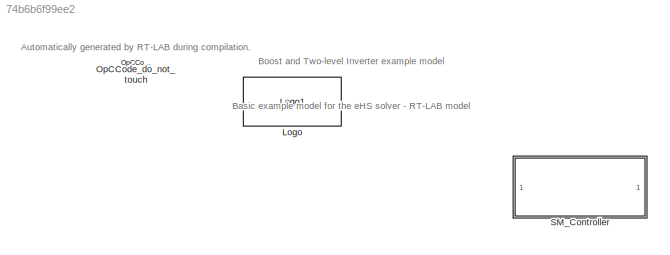
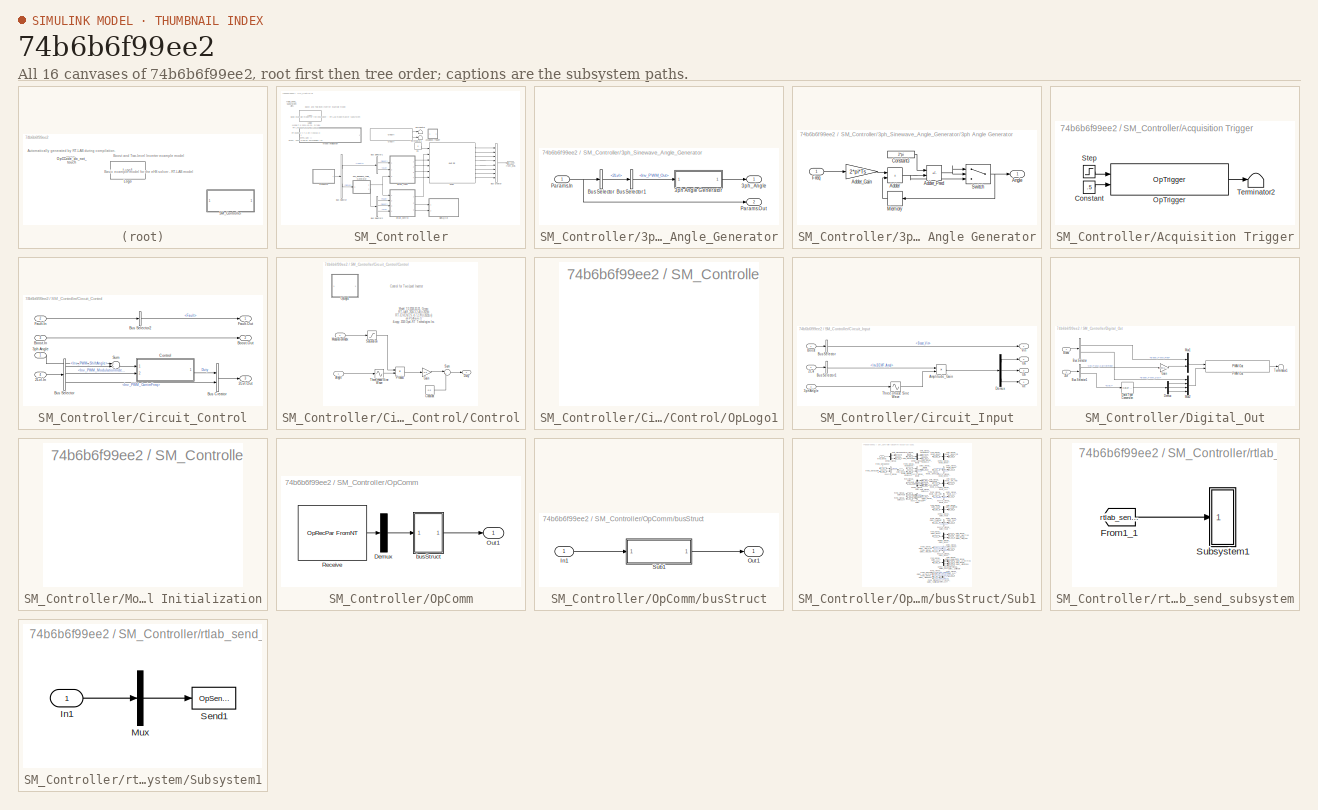
[diagram: thumbnail index - all 16 canvases of the model, root first then tree order]
MODEL slx_74b6b6f99ee2
KIND model
CONFIG AbsTol = auto
CONFIG EnableMultiTasking = off
CONFIG FixedStep = 2e-05
CONFIG InitFcn = Boost_and_Two_Level_Inverter_param;
CONFIG MaxStep = auto
CONFIG MinStep = auto
CONFIG PostLoadFcn = Boost_and_Two_Level_Inverter_param;
CONFIG RelTol = 1e-3
CONFIG SampleTimeConstraint = Unconstrained
CONFIG SolverName = ode3
CONFIG StartTime = 0.0
CONFIG StopTime = inf
BLOCK [Reference] Logo  REF=opal_lib/Logo1
  Ports = []
  SourceBlock = opal_lib/Logo1
  SourceType = Opal-RT logo
BLOCK [Reference] OpCCode_do_not_touch  REF=opal_lib/Communication/OpCCode
  Ports = []
  SourceBlock = opal_lib/Communication/OpCCode
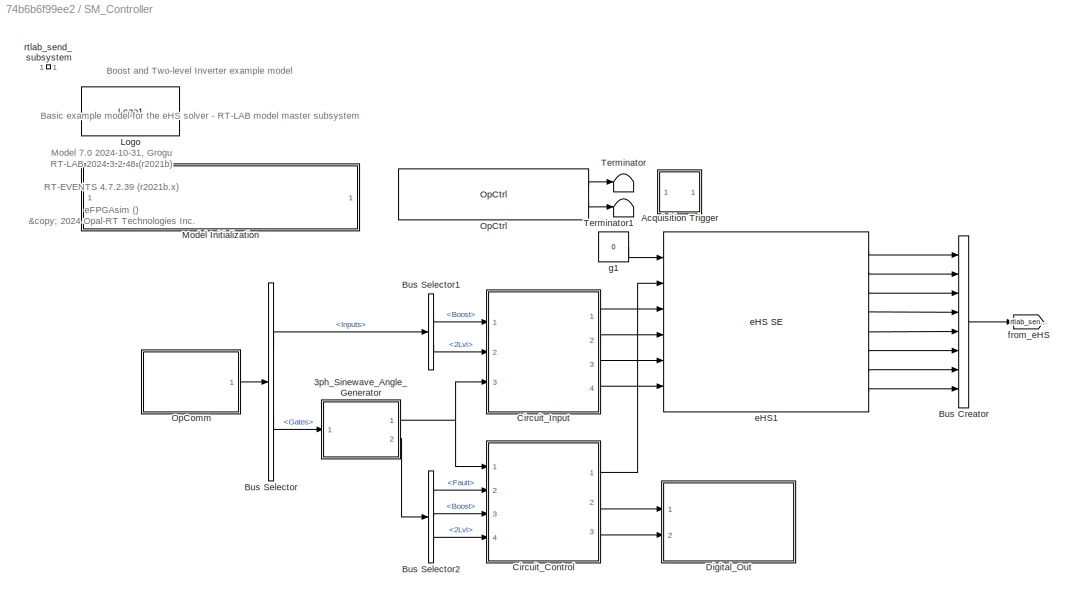
BLOCK [SubSystem] SM_Controller
  Ports = []
  RequestExecContextInheritance = off
BLOCK [SubSystem] SM_Controller/3ph_Sinewave_Angle_Generator
  NameLocation = top
  Ports = [1, 2]
  RequestExecContextInheritance = off
BLOCK [SubSystem] SM_Controller/3ph_Sinewave_Angle_Generator/3ph Angle Generator
  Ports = [1, 1]
  RequestExecContextInheritance = off
BLOCK [Sum] SM_Controller/3ph_Sinewave_Angle_Generator/3ph Angle Generator/Adder
  IconShape = rectangular
  Ports = [2, 1]
BLOCK [Gain] SM_Controller/3ph_Sinewave_Angle_Generator/3ph Angle Generator/Adder_Gain
  Gain = 2*pi*Ts
  NameLocation = top
  OutDataTypeStr = double
BLOCK [Sum] SM_Controller/3ph_Sinewave_Angle_Generator/3ph Angle Generator/Adder_Pred
  IconShape = rectangular
  Inputs = -+
  NameLocation = top
  Ports = [2, 1]
BLOCK [Outport] SM_Controller/3ph_Sinewave_Angle_Generator/3ph Angle Generator/Angle
  VectorParamsAs1DForOutWhenUnconnected = off
BLOCK [Constant] SM_Controller/3ph_Sinewave_Angle_Generator/3ph Angle Generator/Constant3
  OutDataTypeStr = double
  Value = 2*pi
BLOCK [Inport] SM_Controller/3ph_Sinewave_Angle_Generator/3ph Angle Generator/Freq
BLOCK [Memory] SM_Controller/3ph_Sinewave_Angle_Generator/3ph Angle Generator/Memory
  InheritSampleTime = on
BLOCK [Switch] SM_Controller/3ph_Sinewave_Angle_Generator/3ph Angle Generator/Switch
  Criteria = u2 > Threshold
  InputSameDT = off
  SaturateOnIntegerOverflow = off
BLOCK [Outport] SM_Controller/3ph_Sinewave_Angle_Generator/3ph_Angle
  VectorParamsAs1DForOutWhenUnconnected = off
BLOCK [BusSelector] SM_Controller/3ph_Sinewave_Angle_Generator/Bus Selector
  OutputSignals = 2Lvl
  Ports = [1, 1]
BLOCK [BusSelector] SM_Controller/3ph_Sinewave_Angle_Generator/Bus Selector1
  OutputSignals = Inv_PWM_Out
  Ports = [1, 1]
BLOCK [Inport] SM_Controller/3ph_Sinewave_Angle_Generator/Params.In
BLOCK [Outport] SM_Controller/3ph_Sinewave_Angle_Generator/Params.Out
  Port = 2
  VectorParamsAs1DForOutWhenUnconnected = off
BLOCK [SubSystem] SM_Controller/Acquisition Trigger
  Ports = []
  RequestExecContextInheritance = off
BLOCK [Constant] SM_Controller/Acquisition Trigger/Constant
  Value = .5
BLOCK [Reference] SM_Controller/Acquisition Trigger/OpTrigger  REF=rtlab/DataLogging/OpTrigger
  Ports = [2, 1]
  SourceBlock = rtlab/DataLogging/OpTrigger
  SourceProductName = RT-LAB
  SourceType = OpTrigger
BLOCK [Step] SM_Controller/Acquisition Trigger/Step
  SampleTime = Ts
  Time = 0.5
BLOCK [Terminator] SM_Controller/Acquisition Trigger/Terminator2
BLOCK [BusCreator] SM_Controller/Bus Creator
  DisplayOption = bar
  InheritFromInputs = on
  Inputs = 8
  Ports = [8, 1]
BLOCK [BusSelector] SM_Controller/Bus Selector
  OutputSignals = Inputs,Gates
  Ports = [1, 2]
BLOCK [BusSelector] SM_Controller/Bus Selector1
  OutputSignals = Boost,2Lvl
  Ports = [1, 2]
BLOCK [BusSelector] SM_Controller/Bus Selector2
  OutputSignals = Fault,Boost,2Lvl
  Ports = [1, 3]
BLOCK [SubSystem] SM_Controller/Circuit_Control
  Ports = [4, 3]
  RequestExecContextInheritance = off
BLOCK [Inport] SM_Controller/Circuit_Control/2Lvl.In
  Port = 4
BLOCK [Outport] SM_Controller/Circuit_Control/2Lvl.Out
  Port = 3
  VectorParamsAs1DForOutWhenUnconnected = off
BLOCK [Inport] SM_Controller/Circuit_Control/3ph Angle
BLOCK [Inport] SM_Controller/Circuit_Control/Boost.In
  Port = 3
BLOCK [Outport] SM_Controller/Circuit_Control/Boost.Out
  Port = 2
  VectorParamsAs1DForOutWhenUnconnected = off
BLOCK [BusCreator] SM_Controller/Circuit_Control/Bus Creator
  DisplayOption = bar
  InheritFromInputs = on
  Inputs = 2
  Ports = [2, 1]
BLOCK [BusSelector] SM_Controller/Circuit_Control/Bus Selector
  OutputSignals = Inv_PWM_ShiftAngle,Inv_PWM_ModulationIndex,Inv_PWM_CarrierFreq
  Ports = [1, 3]
BLOCK [BusSelector] SM_Controller/Circuit_Control/Bus Selector2
  OutputSignals = Fault
  Ports = [1, 1]
BLOCK [SubSystem] SM_Controller/Circuit_Control/Control
  NameLocation = top
  Ports = [2, 1]
  RequestExecContextInheritance = off
BLOCK [Inport] SM_Controller/Circuit_Control/Control/Angle
BLOCK [Constant] SM_Controller/Circuit_Control/Control/Constant
  Value = 0.5
BLOCK [Outport] SM_Controller/Circuit_Control/Control/Duty
  VectorParamsAs1DForOutWhenUnconnected = off
BLOCK [Gain] SM_Controller/Circuit_Control/Control/Gain
  Gain = 0.5
BLOCK [Inport] SM_Controller/Circuit_Control/Control/ModulationIndex
  Port = 2
BLOCK [SubSystem] SM_Controller/Circuit_Control/Control/OpLogo1
  Ports = []
  RequestExecContextInheritance = off
BLOCK [Product] SM_Controller/Circuit_Control/Control/Product
  Ports = [2, 1]
  RndMeth = Zero
BLOCK [Saturate] SM_Controller/Circuit_Control/Control/Saturation
  LowerLimit = 0.05
  OutDataTypeStr = Inherit: Inherit via back propagation
  UpperLimit = 0.95
BLOCK [Sum] SM_Controller/Circuit_Control/Control/Sum
  Inputs = |++
  Ports = [2, 1]
BLOCK [Sin] SM_Controller/Circuit_Control/Control/Three-phase Sine Wave
  NameLocation = top
  Phase = Inv_PWM_Phases
  Ports = [1, 1]
  TimeSource = Use external signal
BLOCK [Inport] SM_Controller/Circuit_Control/Fault.In
  Port = 2
BLOCK [Outport] SM_Controller/Circuit_Control/Fault.Out
  VectorParamsAs1DForOutWhenUnconnected = off
BLOCK [Sum] SM_Controller/Circuit_Control/Sum
  Inputs = ++|
  NameLocation = top
  Ports = [2, 1]
BLOCK [SubSystem] SM_Controller/Circuit_Input
  NameLocation = top
  Ports = [3, 4]
  RequestExecContextInheritance = off
BLOCK [Inport] SM_Controller/Circuit_Input/2Lvl
  Port = 2
BLOCK [Inport] SM_Controller/Circuit_Input/3phAngle
  Port = 3
BLOCK [Product] SM_Controller/Circuit_Input/Amplitude_Gain
  NameLocation = top
  Ports = [2, 1]
  RndMeth = Zero
BLOCK [Inport] SM_Controller/Circuit_Input/Boost
BLOCK [BusSelector] SM_Controller/Circuit_Input/Bus Selector
  OutputSignals = Boost_Vin
  Ports = [1, 1]
BLOCK [BusSelector] SM_Controller/Circuit_Input/Bus Selector1
  OutputSignals = Inv_BEMF_Ampl
  Ports = [1, 1]
BLOCK [Demux] SM_Controller/Circuit_Input/Demux
  Outputs = 3
  Ports = [1, 3]
BLOCK [Sin] SM_Controller/Circuit_Input/Three-phase Sine Wave
  NameLocation = top
  Phase = Inv_PWM_Phases
  Ports = [1, 1]
  TimeSource = Use external signal
BLOCK [Outport] SM_Controller/Circuit_Input/Ua
  Port = 2
  VectorParamsAs1DForOutWhenUnconnected = off
BLOCK [Outport] SM_Controller/Circuit_Input/Ub
  Port = 3
  VectorParamsAs1DForOutWhenUnconnected = off
BLOCK [Outport] SM_Controller/Circuit_Input/Uc
  Port = 4
  VectorParamsAs1DForOutWhenUnconnected = off
BLOCK [Outport] SM_Controller/Circuit_Input/Vin
  VectorParamsAs1DForOutWhenUnconnected = off
BLOCK [SubSystem] SM_Controller/Digital_Out
  Ports = [2]
  RequestExecContextInheritance = off
BLOCK [Inport] SM_Controller/Digital_Out/2Lvl
  Port = 2
BLOCK [Inport] SM_Controller/Digital_Out/Boost
BLOCK [BusSelector] SM_Controller/Digital_Out/Bus Selector
  OutputSignals = Boost_PWM_Freq,Boost_PWM_Duty
  Ports = [1, 2]
BLOCK [BusSelector] SM_Controller/Digital_Out/Bus Selector1
  OutputSignals = Inv_PWM_CarrierFreq,Duty
  Ports = [1, 2]
BLOCK [DataTypeConversion] SM_Controller/Digital_Out/Data Type Conversion
  OutDataTypeStr = double
  RndMeth = Floor
  SaturateOnIntegerOverflow = off
BLOCK [Demux] SM_Controller/Digital_Out/Demux
  Outputs = 3
  Ports = [1, 3]
BLOCK [Gain] SM_Controller/Digital_Out/Gain
  Gain = ones(1,3)
BLOCK [Mux] SM_Controller/Digital_Out/Mux1
  DisplayOption = bar
  Inputs = 2
  Ports = [2, 1]
BLOCK [Mux] SM_Controller/Digital_Out/Mux2
  DisplayOption = bar
  Ports = [4, 1]
BLOCK [Reference] SM_Controller/Digital_Out/PWM Out  REF=rtio_opalrt_common/PWM Out
  AttributesFormatString = %<CtrlName>
  Ports = [2, 1]
  SourceBlock = rtio_opalrt_common/PWM Out
  SourceProductName = RT-LAB I/O
  SourceType = OpFcnCommonPWMOut
BLOCK [Terminator] SM_Controller/Digital_Out/Terminator1
BLOCK [Reference] SM_Controller/Logo  REF=opal_lib/Logo1
  Ports = []
  SourceBlock = opal_lib/Logo1
  SourceType = Opal-RT logo
BLOCK [SubSystem] SM_Controller/Model Initialization
  CopyFcn = set_param(gcb,'LinkStatus','none')
  Ports = []
  RequestExecContextInheritance = off
BLOCK [SubSystem] SM_Controller/OpComm
  Ports = [0, 1]
  RequestExecContextInheritance = off
BLOCK [Demux] SM_Controller/OpComm/Demux
  Outputs = [9]
  Ports = [1, 1]
BLOCK [Outport] SM_Controller/OpComm/Out1
BLOCK [Reference] SM_Controller/OpComm/Receive  REF=opal_lib/Communication/OpRecPar
FromNT
  Ports = [0, 1]
  SourceBlock = opal_lib/Communication/OpRecPar\nFromNT
  SourceType = OPAL Receive Icon
BLOCK [SubSystem] SM_Controller/OpComm/busStruct
  Ports = [1, 1]
  RequestExecContextInheritance = off
BLOCK [Inport] SM_Controller/OpComm/busStruct/In1
BLOCK [Outport] SM_Controller/OpComm/busStruct/Out1
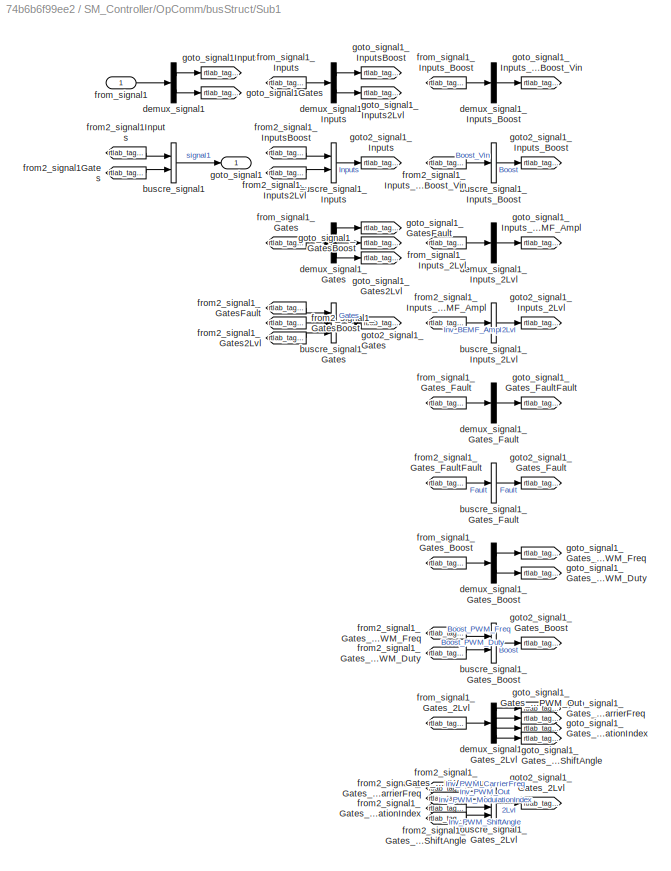
BLOCK [SubSystem] SM_Controller/OpComm/busStruct/Sub1
  Ports = [1, 1]
  RequestExecContextInheritance = off
BLOCK [BusCreator] SM_Controller/OpComm/busStruct/Sub1/buscre_signal1
  InheritFromInputs = on
  Inputs = 2
  Ports = [2, 1]
BLOCK [BusCreator] SM_Controller/OpComm/busStruct/Sub1/buscre_signal1_Gates
  InheritFromInputs = on
  Inputs = 3
  Ports = [3, 1]
BLOCK [BusCreator] SM_Controller/OpComm/busStruct/Sub1/buscre_signal1_Gates_2Lvl
  InheritFromInputs = on
  Inputs = 4
  Ports = [4, 1]
BLOCK [BusCreator] SM_Controller/OpComm/busStruct/Sub1/buscre_signal1_Gates_Boost
  InheritFromInputs = on
  Inputs = 2
  Ports = [2, 1]
BLOCK [BusCreator] SM_Controller/OpComm/busStruct/Sub1/buscre_signal1_Gates_Fault
  InheritFromInputs = on
  Inputs = 1
  Ports = [1, 1]
BLOCK [BusCreator] SM_Controller/OpComm/busStruct/Sub1/buscre_signal1_Inputs
  InheritFromInputs = on
  Inputs = 2
  Ports = [2, 1]
BLOCK [BusCreator] SM_Controller/OpComm/busStruct/Sub1/buscre_signal1_Inputs_2Lvl
  InheritFromInputs = on
  Inputs = 1
  Ports = [1, 1]
BLOCK [BusCreator] SM_Controller/OpComm/busStruct/Sub1/buscre_signal1_Inputs_Boost
  InheritFromInputs = on
  Inputs = 1
  Ports = [1, 1]
BLOCK [Demux] SM_Controller/OpComm/busStruct/Sub1/demux_signal1
  Outputs = [2  7]
  Ports = [1, 2]
BLOCK [Demux] SM_Controller/OpComm/busStruct/Sub1/demux_signal1_Gates
  Outputs = [1  2  4]
  Ports = [1, 3]
BLOCK [Demux] SM_Controller/OpComm/busStruct/Sub1/demux_signal1_Gates_2Lvl
  Outputs = [1  1  1  1]
  Ports = [1, 4]
BLOCK [Demux] SM_Controller/OpComm/busStruct/Sub1/demux_signal1_Gates_Boost
  Outputs = [1  1]
  Ports = [1, 2]
BLOCK [Demux] SM_Controller/OpComm/busStruct/Sub1/demux_signal1_Gates_Fault
  Outputs = [1]
  Ports = [1, 1]
BLOCK [Demux] SM_Controller/OpComm/busStruct/Sub1/demux_signal1_Inputs
  Outputs = [1  1]
  Ports = [1, 2]
BLOCK [Demux] SM_Controller/OpComm/busStruct/Sub1/demux_signal1_Inputs_2Lvl
  Outputs = [1]
  Ports = [1, 1]
BLOCK [Demux] SM_Controller/OpComm/busStruct/Sub1/demux_signal1_Inputs_Boost
  Outputs = [1]
  Ports = [1, 1]
BLOCK [From] SM_Controller/OpComm/busStruct/Sub1/from2_signal1Gates
  GotoTag = rtlab_tag_4
BLOCK [From] SM_Controller/OpComm/busStruct/Sub1/from2_signal1Inputs
  GotoTag = rtlab_tag_3
BLOCK [From] SM_Controller/OpComm/busStruct/Sub1/from2_signal1_Gates2Lvl
  GotoTag = rtlab_tag_16
BLOCK [From] SM_Controller/OpComm/busStruct/Sub1/from2_signal1_GatesBoost
  GotoTag = rtlab_tag_15
BLOCK [From] SM_Controller/OpComm/busStruct/Sub1/from2_signal1_GatesFault
  GotoTag = rtlab_tag_14
BLOCK [From] SM_Controller/OpComm/busStruct/Sub1/from2_signal1_Gates_2LvlInv_PWM_CarrierFreq
  GotoTag = rtlab_tag_20
BLOCK [From] SM_Controller/OpComm/busStruct/Sub1/from2_signal1_Gates_2LvlInv_PWM_ModulationIndex
  GotoTag = rtlab_tag_22
BLOCK [From] SM_Controller/OpComm/busStruct/Sub1/from2_signal1_Gates_2LvlInv_PWM_Out
  GotoTag = rtlab_tag_21
BLOCK [From] SM_Controller/OpComm/busStruct/Sub1/from2_signal1_Gates_2LvlInv_PWM_ShiftAngle
  GotoTag = rtlab_tag_23
BLOCK [From] SM_Controller/OpComm/busStruct/Sub1/from2_signal1_Gates_BoostBoost_PWM_Duty
  GotoTag = rtlab_tag_19
BLOCK [From] SM_Controller/OpComm/busStruct/Sub1/from2_signal1_Gates_BoostBoost_PWM_Freq
  GotoTag = rtlab_tag_18
BLOCK [From] SM_Controller/OpComm/busStruct/Sub1/from2_signal1_Gates_FaultFault
  GotoTag = rtlab_tag_17
BLOCK [From] SM_Controller/OpComm/busStruct/Sub1/from2_signal1_Inputs2Lvl
  GotoTag = rtlab_tag_8
BLOCK [From] SM_Controller/OpComm/busStruct/Sub1/from2_signal1_InputsBoost
  GotoTag = rtlab_tag_7
BLOCK [From] SM_Controller/OpComm/busStruct/Sub1/from2_signal1_Inputs_2LvlInv_BEMF_Ampl
  GotoTag = rtlab_tag_10
BLOCK [From] SM_Controller/OpComm/busStruct/Sub1/from2_signal1_Inputs_BoostBoost_Vin
  GotoTag = rtlab_tag_9
BLOCK [Inport] SM_Controller/OpComm/busStruct/Sub1/from_signal1
BLOCK [From] SM_Controller/OpComm/busStruct/Sub1/from_signal1_Gates
  GotoTag = rtlab_tag_2
BLOCK [From] SM_Controller/OpComm/busStruct/Sub1/from_signal1_Gates_2Lvl
  GotoTag = rtlab_tag_13
BLOCK [From] SM_Controller/OpComm/busStruct/Sub1/from_signal1_Gates_Boost
  GotoTag = rtlab_tag_12
BLOCK [From] SM_Controller/OpComm/busStruct/Sub1/from_signal1_Gates_Fault
  GotoTag = rtlab_tag_11
BLOCK [From] SM_Controller/OpComm/busStruct/Sub1/from_signal1_Inputs
  GotoTag = rtlab_tag_1
BLOCK [From] SM_Controller/OpComm/busStruct/Sub1/from_signal1_Inputs_2Lvl
  GotoTag = rtlab_tag_6
BLOCK [From] SM_Controller/OpComm/busStruct/Sub1/from_signal1_Inputs_Boost
  GotoTag = rtlab_tag_5
BLOCK [Goto] SM_Controller/OpComm/busStruct/Sub1/goto2_signal1_Gates
  GotoTag = rtlab_tag_4
BLOCK [Goto] SM_Controller/OpComm/busStruct/Sub1/goto2_signal1_Gates_2Lvl
  GotoTag = rtlab_tag_16
BLOCK [Goto] SM_Controller/OpComm/busStruct/Sub1/goto2_signal1_Gates_Boost
  GotoTag = rtlab_tag_15
BLOCK [Goto] SM_Controller/OpComm/busStruct/Sub1/goto2_signal1_Gates_Fault
  GotoTag = rtlab_tag_14
BLOCK [Goto] SM_Controller/OpComm/busStruct/Sub1/goto2_signal1_Inputs
  GotoTag = rtlab_tag_3
BLOCK [Goto] SM_Controller/OpComm/busStruct/Sub1/goto2_signal1_Inputs_2Lvl
  GotoTag = rtlab_tag_8
BLOCK [Goto] SM_Controller/OpComm/busStruct/Sub1/goto2_signal1_Inputs_Boost
  GotoTag = rtlab_tag_7
BLOCK [Outport] SM_Controller/OpComm/busStruct/Sub1/goto_signal1
BLOCK [Goto] SM_Controller/OpComm/busStruct/Sub1/goto_signal1Gates
  GotoTag = rtlab_tag_2
BLOCK [Goto] SM_Controller/OpComm/busStruct/Sub1/goto_signal1Inputs
  GotoTag = rtlab_tag_1
BLOCK [Goto] SM_Controller/OpComm/busStruct/Sub1/goto_signal1_Gates2Lvl
  GotoTag = rtlab_tag_13
BLOCK [Goto] SM_Controller/OpComm/busStruct/Sub1/goto_signal1_GatesBoost
  GotoTag = rtlab_tag_12
BLOCK [Goto] SM_Controller/OpComm/busStruct/Sub1/goto_signal1_GatesFault
  GotoTag = rtlab_tag_11
BLOCK [Goto] SM_Controller/OpComm/busStruct/Sub1/goto_signal1_Gates_2LvlInv_PWM_CarrierFreq
  GotoTag = rtlab_tag_20
BLOCK [Goto] SM_Controller/OpComm/busStruct/Sub1/goto_signal1_Gates_2LvlInv_PWM_ModulationIndex
  GotoTag = rtlab_tag_22
BLOCK [Goto] SM_Controller/OpComm/busStruct/Sub1/goto_signal1_Gates_2LvlInv_PWM_Out
  GotoTag = rtlab_tag_21
BLOCK [Goto] SM_Controller/OpComm/busStruct/Sub1/goto_signal1_Gates_2LvlInv_PWM_ShiftAngle
  GotoTag = rtlab_tag_23
BLOCK [Goto] SM_Controller/OpComm/busStruct/Sub1/goto_signal1_Gates_BoostBoost_PWM_Duty
  GotoTag = rtlab_tag_19
BLOCK [Goto] SM_Controller/OpComm/busStruct/Sub1/goto_signal1_Gates_BoostBoost_PWM_Freq
  GotoTag = rtlab_tag_18
BLOCK [Goto] SM_Controller/OpComm/busStruct/Sub1/goto_signal1_Gates_FaultFault
  GotoTag = rtlab_tag_17
BLOCK [Goto] SM_Controller/OpComm/busStruct/Sub1/goto_signal1_Inputs2Lvl
  GotoTag = rtlab_tag_6
BLOCK [Goto] SM_Controller/OpComm/busStruct/Sub1/goto_signal1_InputsBoost
  GotoTag = rtlab_tag_5
BLOCK [Goto] SM_Controller/OpComm/busStruct/Sub1/goto_signal1_Inputs_2LvlInv_BEMF_Ampl
  GotoTag = rtlab_tag_10
BLOCK [Goto] SM_Controller/OpComm/busStruct/Sub1/goto_signal1_Inputs_BoostBoost_Vin
  GotoTag = rtlab_tag_9
BLOCK [Reference] SM_Controller/OpCtrl  REF=rtio_opalrt_common/OpCtrl
  Ports = [0, 2]
  SourceBlock = rtio_opalrt_common/OpCtrl
  SourceProductName = RT-LAB I/O
  SourceType = OpCtrlCommonMask
BLOCK [Terminator] SM_Controller/Terminator
BLOCK [Terminator] SM_Controller/Terminator1
BLOCK [Reference] SM_Controller/eHS1  REF=ehsSchematicEditorSourceLib/eHS SE
  AttributesFormatString = %<opCtrlName>\n%<ehsFileName>\n%<displayBlockInfos>
  Ports = [6, 8]
  SourceBlock = ehsSchematicEditorSourceLib/eHS SE
  SourceType = eHS - S-Function & Opalboard
  UserDataPersistent = on
BLOCK [Goto] SM_Controller/from_eHS
  GotoTag = rtlab_send_1
  TagVisibility = global
BLOCK [Constant] SM_Controller/g1
  Value = 0
BLOCK [SubSystem] SM_Controller/rtlab_send_subsystem
  Ports = []
  Priority = -100
  RequestExecContextInheritance = off
BLOCK [From] SM_Controller/rtlab_send_subsystem/From1_1
  GotoTag = rtlab_send_1
  TagVisibility = global
BLOCK [SubSystem] SM_Controller/rtlab_send_subsystem/Subsystem1
  Ports = [1]
  RequestExecContextInheritance = off
BLOCK [Inport] SM_Controller/rtlab_send_subsystem/Subsystem1/In1
BLOCK [Mux] SM_Controller/rtlab_send_subsystem/Subsystem1/Mux
  Inputs = 1
  Ports = [1, 1]
BLOCK [Reference] SM_Controller/rtlab_send_subsystem/Subsystem1/Send1  REF=opal_lib/Communication/OpSendToNT
  Ports = [1]
  SourceBlock = opal_lib/Communication/OpSendToNT
  SourceType = OPAL Send Icon
ANNOTATION (root): Automatically generated by RT-LAB during compilation.
ANNOTATION (root): Basic example model for the eHS solver - RT-LAB model
ANNOTATION (root): Boost and Two-level Inverter example model
ANNOTATION SM_Controller: Model 7.0 2024-10-31, Grogu RT-LAB 2024.3.2.48 (r2021b) RT-EVENTS 4.7.2.39 (r2021b.x) eFPGAsim () <copyright redacted>
ANNOTATION SM_Controller: Basic example model for the eHS solver - RT-LAB model master subsystem
ANNOTATION SM_Controller: Boost and Two-level Inverter example model
ANNOTATION SM_Controller/Circuit_Control/Control: Model 7.0 2024-10-31, Grogu RT-LAB 2024.3.2.48 (r2021b) RT-EVENTS 4.7.2.39 (r2021b.x) eFPGAsim () <copyright redacted>
ANNOTATION SM_Controller/Circuit_Control/Control: Control for Two Level Inverter
NET SM_Controller/3ph_Sinewave_Angle_Generator/3ph Angle Generator/Adder:1 -> SM_Controller/3ph_Sinewave_Angle_Generator/3ph Angle Generator/Adder_Pred:2, SM_Controller/3ph_Sinewave_Angle_Generator/3ph Angle Generator/Switch:3
LINE SM_Controller/3ph_Sinewave_Angle_Generator/3ph Angle Generator/Adder_Gain:1 -> SM_Controller/3ph_Sinewave_Angle_Generator/3ph Angle Generator/Adder:1
NET SM_Controller/3ph_Sinewave_Angle_Generator/3ph Angle Generator/Adder_Pred:1 -> SM_Controller/3ph_Sinewave_Angle_Generator/3ph Angle Generator/Switch:1, SM_Controller/3ph_Sinewave_Angle_Generator/3ph Angle Generator/Switch:2
LINE SM_Controller/3ph_Sinewave_Angle_Generator/3ph Angle Generator/Constant3:1 -> SM_Controller/3ph_Sinewave_Angle_Generator/3ph Angle Generator/Adder_Pred:1
LINE SM_Controller/3ph_Sinewave_Angle_Generator/3ph Angle Generator/Freq:1 -> SM_Controller/3ph_Sinewave_Angle_Generator/3ph Angle Generator/Adder_Gain:1
LINE SM_Controller/3ph_Sinewave_Angle_Generator/3ph Angle Generator/Memory:1 -> SM_Controller/3ph_Sinewave_Angle_Generator/3ph Angle Generator/Adder:2
NET SM_Controller/3ph_Sinewave_Angle_Generator/3ph Angle Generator/Switch:1 -> SM_Controller/3ph_Sinewave_Angle_Generator/3ph Angle Generator/Angle:1, SM_Controller/3ph_Sinewave_Angle_Generator/3ph Angle Generator/Memory:1
LINE SM_Controller/3ph_Sinewave_Angle_Generator/3ph Angle Generator:1 -> SM_Controller/3ph_Sinewave_Angle_Generator/3ph_Angle:1
LINE SM_Controller/3ph_Sinewave_Angle_Generator/Bus Selector1:1 -> SM_Controller/3ph_Sinewave_Angle_Generator/3ph Angle Generator:1
LINE SM_Controller/3ph_Sinewave_Angle_Generator/Bus Selector:1 -> SM_Controller/3ph_Sinewave_Angle_Generator/Bus Selector1:1
NET SM_Controller/3ph_Sinewave_Angle_Generator/Params.In:1 -> SM_Controller/3ph_Sinewave_Angle_Generator/Bus Selector:1, SM_Controller/3ph_Sinewave_Angle_Generator/Params.Out:1
NET SM_Controller/3ph_Sinewave_Angle_Generator:1 -> SM_Controller/Circuit_Control:1, SM_Controller/Circuit_Input:3
LINE SM_Controller/3ph_Sinewave_Angle_Generator:2 -> SM_Controller/Bus Selector2:1
LINE SM_Controller/Acquisition Trigger/Constant:1 -> SM_Controller/Acquisition Trigger/OpTrigger:2
LINE SM_Controller/Acquisition Trigger/OpTrigger:1 -> SM_Controller/Acquisition Trigger/Terminator2:1
LINE SM_Controller/Acquisition Trigger/Step:1 -> SM_Controller/Acquisition Trigger/OpTrigger:1
LINE SM_Controller/Bus Creator:1 -> SM_Controller/from_eHS:1
LINE SM_Controller/Bus Selector1:1 -> SM_Controller/Circuit_Input:1
LINE SM_Controller/Bus Selector1:2 -> SM_Controller/Circuit_Input:2
LINE SM_Controller/Bus Selector2:1 -> SM_Controller/Circuit_Control:2
LINE SM_Controller/Bus Selector2:2 -> SM_Controller/Circuit_Control:3
LINE SM_Controller/Bus Selector2:3 -> SM_Controller/Circuit_Control:4
LINE SM_Controller/Bus Selector:1 -> SM_Controller/Bus Selector1:1
LINE SM_Controller/Bus Selector:2 -> SM_Controller/3ph_Sinewave_Angle_Generator:1
LINE SM_Controller/Circuit_Control/2Lvl.In:1 -> SM_Controller/Circuit_Control/Bus Selector:1
LINE SM_Controller/Circuit_Control/3ph Angle:1 -> SM_Controller/Circuit_Control/Sum:1
LINE SM_Controller/Circuit_Control/Boost.In:1 -> SM_Controller/Circuit_Control/Boost.Out:1
LINE SM_Controller/Circuit_Control/Bus Creator:1 -> SM_Controller/Circuit_Control/2Lvl.Out:1
LINE SM_Controller/Circuit_Control/Bus Selector2:1 -> SM_Controller/Circuit_Control/Fault.Out:1
LINE SM_Controller/Circuit_Control/Bus Selector:1 -> SM_Controller/Circuit_Control/Sum:2
LINE SM_Controller/Circuit_Control/Bus Selector:2 -> SM_Controller/Circuit_Control/Control:2
LINE SM_Controller/Circuit_Control/Bus Selector:3 -> SM_Controller/Circuit_Control/Bus Creator:2
LINE SM_Controller/Circuit_Control/Control/Angle:1 -> SM_Controller/Circuit_Control/Control/Three-phase Sine Wave:1
LINE SM_Controller/Circuit_Control/Control/Constant:1 -> SM_Controller/Circuit_Control/Control/Sum:2
LINE SM_Controller/Circuit_Control/Control/Gain:1 -> SM_Controller/Circuit_Control/Control/Sum:1
LINE SM_Controller/Circuit_Control/Control/ModulationIndex:1 -> SM_Controller/Circuit_Control/Control/Saturation:1
LINE SM_Controller/Circuit_Control/Control/Product:1 -> SM_Controller/Circuit_Control/Control/Gain:1
LINE SM_Controller/Circuit_Control/Control/Saturation:1 -> SM_Controller/Circuit_Control/Control/Product:1
LINE SM_Controller/Circuit_Control/Control/Sum:1 -> SM_Controller/Circuit_Control/Control/Duty:1
LINE SM_Controller/Circuit_Control/Control/Three-phase Sine Wave:1 -> SM_Controller/Circuit_Control/Control/Product:2
LINE SM_Controller/Circuit_Control/Control:1 -> SM_Controller/Circuit_Control/Bus Creator:1
LINE SM_Controller/Circuit_Control/Fault.In:1 -> SM_Controller/Circuit_Control/Bus Selector2:1
LINE SM_Controller/Circuit_Control/Sum:1 -> SM_Controller/Circuit_Control/Control:1
LINE SM_Controller/Circuit_Control:1 -> SM_Controller/eHS1:2
LINE SM_Controller/Circuit_Control:2 -> SM_Controller/Digital_Out:1
LINE SM_Controller/Circuit_Control:3 -> SM_Controller/Digital_Out:2
LINE SM_Controller/Circuit_Input/2Lvl:1 -> SM_Controller/Circuit_Input/Bus Selector1:1
LINE SM_Controller/Circuit_Input/3phAngle:1 -> SM_Controller/Circuit_Input/Three-phase Sine Wave:1
LINE SM_Controller/Circuit_Input/Amplitude_Gain:1 -> SM_Controller/Circuit_Input/Demux:1
LINE SM_Controller/Circuit_Input/Boost:1 -> SM_Controller/Circuit_Input/Bus Selector:1
LINE SM_Controller/Circuit_Input/Bus Selector1:1 -> SM_Controller/Circuit_Input/Amplitude_Gain:1
LINE SM_Controller/Circuit_Input/Bus Selector:1 -> SM_Controller/Circuit_Input/Vin:1
LINE SM_Controller/Circuit_Input/Demux:1 -> SM_Controller/Circuit_Input/Ua:1
LINE SM_Controller/Circuit_Input/Demux:2 -> SM_Controller/Circuit_Input/Ub:1
LINE SM_Controller/Circuit_Input/Demux:3 -> SM_Controller/Circuit_Input/Uc:1
LINE SM_Controller/Circuit_Input/Three-phase Sine Wave:1 -> SM_Controller/Circuit_Input/Amplitude_Gain:2
LINE SM_Controller/Circuit_Input:1 -> SM_Controller/eHS1:3
LINE SM_Controller/Circuit_Input:2 -> SM_Controller/eHS1:4
LINE SM_Controller/Circuit_Input:3 -> SM_Controller/eHS1:5
LINE SM_Controller/Circuit_Input:4 -> SM_Controller/eHS1:6
LINE SM_Controller/Digital_Out/2Lvl:1 -> SM_Controller/Digital_Out/Bus Selector1:1
LINE SM_Controller/Digital_Out/Boost:1 -> SM_Controller/Digital_Out/Bus Selector:1
LINE SM_Controller/Digital_Out/Bus Selector1:1 -> SM_Controller/Digital_Out/Gain:1
LINE SM_Controller/Digital_Out/Bus Selector1:2 -> SM_Controller/Digital_Out/Data Type Conversion:1
LINE SM_Controller/Digital_Out/Bus Selector:1 -> SM_Controller/Digital_Out/Mux1:1
LINE SM_Controller/Digital_Out/Bus Selector:2 -> SM_Controller/Digital_Out/Mux2:1
LINE SM_Controller/Digital_Out/Data Type Conversion:1 -> SM_Controller/Digital_Out/Demux:1
LINE SM_Controller/Digital_Out/Demux:1 -> SM_Controller/Digital_Out/Mux2:2
LINE SM_Controller/Digital_Out/Demux:2 -> SM_Controller/Digital_Out/Mux2:3
LINE SM_Controller/Digital_Out/Demux:3 -> SM_Controller/Digital_Out/Mux2:4
LINE SM_Controller/Digital_Out/Gain:1 -> SM_Controller/Digital_Out/Mux1:2
LINE SM_Controller/Digital_Out/Mux1:1 -> SM_Controller/Digital_Out/PWM Out:1
LINE SM_Controller/Digital_Out/Mux2:1 -> SM_Controller/Digital_Out/PWM Out:2
LINE SM_Controller/Digital_Out/PWM Out:1 -> SM_Controller/Digital_Out/Terminator1:1
LINE SM_Controller/OpComm/Demux:1 -> SM_Controller/OpComm/busStruct:1
LINE SM_Controller/OpComm/Receive:1 -> SM_Controller/OpComm/Demux:1
LINE SM_Controller/OpComm/busStruct/In1:1 -> SM_Controller/OpComm/busStruct/Sub1:1
LINE SM_Controller/OpComm/busStruct/Sub1/buscre_signal1:1 -> SM_Controller/OpComm/busStruct/Sub1/goto_signal1:1
LINE SM_Controller/OpComm/busStruct/Sub1/buscre_signal1_Gates:1 -> SM_Controller/OpComm/busStruct/Sub1/goto2_signal1_Gates:1
LINE SM_Controller/OpComm/busStruct/Sub1/buscre_signal1_Gates_2Lvl:1 -> SM_Controller/OpComm/busStruct/Sub1/goto2_signal1_Gates_2Lvl:1
LINE SM_Controller/OpComm/busStruct/Sub1/buscre_signal1_Gates_Boost:1 -> SM_Controller/OpComm/busStruct/Sub1/goto2_signal1_Gates_Boost:1
LINE SM_Controller/OpComm/busStruct/Sub1/buscre_signal1_Gates_Fault:1 -> SM_Controller/OpComm/busStruct/Sub1/goto2_signal1_Gates_Fault:1
LINE SM_Controller/OpComm/busStruct/Sub1/buscre_signal1_Inputs:1 -> SM_Controller/OpComm/busStruct/Sub1/goto2_signal1_Inputs:1
LINE SM_Controller/OpComm/busStruct/Sub1/buscre_signal1_Inputs_2Lvl:1 -> SM_Controller/OpComm/busStruct/Sub1/goto2_signal1_Inputs_2Lvl:1
LINE SM_Controller/OpComm/busStruct/Sub1/buscre_signal1_Inputs_Boost:1 -> SM_Controller/OpComm/busStruct/Sub1/goto2_signal1_Inputs_Boost:1
LINE SM_Controller/OpComm/busStruct/Sub1/demux_signal1:1 -> SM_Controller/OpComm/busStruct/Sub1/goto_signal1Inputs:1
LINE SM_Controller/OpComm/busStruct/Sub1/demux_signal1:2 -> SM_Controller/OpComm/busStruct/Sub1/goto_signal1Gates:1
LINE SM_Controller/OpComm/busStruct/Sub1/demux_signal1_Gates:1 -> SM_Controller/OpComm/busStruct/Sub1/goto_signal1_GatesFault:1
LINE SM_Controller/OpComm/busStruct/Sub1/demux_signal1_Gates:2 -> SM_Controller/OpComm/busStruct/Sub1/goto_signal1_GatesBoost:1
LINE SM_Controller/OpComm/busStruct/Sub1/demux_signal1_Gates:3 -> SM_Controller/OpComm/busStruct/Sub1/goto_signal1_Gates2Lvl:1
LINE SM_Controller/OpComm/busStruct/Sub1/demux_signal1_Gates_2Lvl:1 -> SM_Controller/OpComm/busStruct/Sub1/goto_signal1_Gates_2LvlInv_PWM_CarrierFreq:1
LINE SM_Controller/OpComm/busStruct/Sub1/demux_signal1_Gates_2Lvl:2 -> SM_Controller/OpComm/busStruct/Sub1/goto_signal1_Gates_2LvlInv_PWM_Out:1
LINE SM_Controller/OpComm/busStruct/Sub1/demux_signal1_Gates_2Lvl:3 -> SM_Controller/OpComm/busStruct/Sub1/goto_signal1_Gates_2LvlInv_PWM_ModulationIndex:1
LINE SM_Controller/OpComm/busStruct/Sub1/demux_signal1_Gates_2Lvl:4 -> SM_Controller/OpComm/busStruct/Sub1/goto_signal1_Gates_2LvlInv_PWM_ShiftAngle:1
LINE SM_Controller/OpComm/busStruct/Sub1/demux_signal1_Gates_Boost:1 -> SM_Controller/OpComm/busStruct/Sub1/goto_signal1_Gates_BoostBoost_PWM_Freq:1
LINE SM_Controller/OpComm/busStruct/Sub1/demux_signal1_Gates_Boost:2 -> SM_Controller/OpComm/busStruct/Sub1/goto_signal1_Gates_BoostBoost_PWM_Duty:1
LINE SM_Controller/OpComm/busStruct/Sub1/demux_signal1_Gates_Fault:1 -> SM_Controller/OpComm/busStruct/Sub1/goto_signal1_Gates_FaultFault:1
LINE SM_Controller/OpComm/busStruct/Sub1/demux_signal1_Inputs:1 -> SM_Controller/OpComm/busStruct/Sub1/goto_signal1_InputsBoost:1
LINE SM_Controller/OpComm/busStruct/Sub1/demux_signal1_Inputs:2 -> SM_Controller/OpComm/busStruct/Sub1/goto_signal1_Inputs2Lvl:1
LINE SM_Controller/OpComm/busStruct/Sub1/demux_signal1_Inputs_2Lvl:1 -> SM_Controller/OpComm/busStruct/Sub1/goto_signal1_Inputs_2LvlInv_BEMF_Ampl:1
LINE SM_Controller/OpComm/busStruct/Sub1/demux_signal1_Inputs_Boost:1 -> SM_Controller/OpComm/busStruct/Sub1/goto_signal1_Inputs_BoostBoost_Vin:1
LINE SM_Controller/OpComm/busStruct/Sub1/from2_signal1Gates:1 -> SM_Controller/OpComm/busStruct/Sub1/buscre_signal1:2
LINE SM_Controller/OpComm/busStruct/Sub1/from2_signal1Inputs:1 -> SM_Controller/OpComm/busStruct/Sub1/buscre_signal1:1
LINE SM_Controller/OpComm/busStruct/Sub1/from2_signal1_Gates2Lvl:1 -> SM_Controller/OpComm/busStruct/Sub1/buscre_signal1_Gates:3
LINE SM_Controller/OpComm/busStruct/Sub1/from2_signal1_GatesBoost:1 -> SM_Controller/OpComm/busStruct/Sub1/buscre_signal1_Gates:2
LINE SM_Controller/OpComm/busStruct/Sub1/from2_signal1_GatesFault:1 -> SM_Controller/OpComm/busStruct/Sub1/buscre_signal1_Gates:1
LINE SM_Controller/OpComm/busStruct/Sub1/from2_signal1_Gates_2LvlInv_PWM_CarrierFreq:1 -> SM_Controller/OpComm/busStruct/Sub1/buscre_signal1_Gates_2Lvl:1
LINE SM_Controller/OpComm/busStruct/Sub1/from2_signal1_Gates_2LvlInv_PWM_ModulationIndex:1 -> SM_Controller/OpComm/busStruct/Sub1/buscre_signal1_Gates_2Lvl:3
LINE SM_Controller/OpComm/busStruct/Sub1/from2_signal1_Gates_2LvlInv_PWM_Out:1 -> SM_Controller/OpComm/busStruct/Sub1/buscre_signal1_Gates_2Lvl:2
LINE SM_Controller/OpComm/busStruct/Sub1/from2_signal1_Gates_2LvlInv_PWM_ShiftAngle:1 -> SM_Controller/OpComm/busStruct/Sub1/buscre_signal1_Gates_2Lvl:4
LINE SM_Controller/OpComm/busStruct/Sub1/from2_signal1_Gates_BoostBoost_PWM_Duty:1 -> SM_Controller/OpComm/busStruct/Sub1/buscre_signal1_Gates_Boost:2
LINE SM_Controller/OpComm/busStruct/Sub1/from2_signal1_Gates_BoostBoost_PWM_Freq:1 -> SM_Controller/OpComm/busStruct/Sub1/buscre_signal1_Gates_Boost:1
LINE SM_Controller/OpComm/busStruct/Sub1/from2_signal1_Gates_FaultFault:1 -> SM_Controller/OpComm/busStruct/Sub1/buscre_signal1_Gates_Fault:1
LINE SM_Controller/OpComm/busStruct/Sub1/from2_signal1_Inputs2Lvl:1 -> SM_Controller/OpComm/busStruct/Sub1/buscre_signal1_Inputs:2
LINE SM_Controller/OpComm/busStruct/Sub1/from2_signal1_InputsBoost:1 -> SM_Controller/OpComm/busStruct/Sub1/buscre_signal1_Inputs:1
LINE SM_Controller/OpComm/busStruct/Sub1/from2_signal1_Inputs_2LvlInv_BEMF_Ampl:1 -> SM_Controller/OpComm/busStruct/Sub1/buscre_signal1_Inputs_2Lvl:1
LINE SM_Controller/OpComm/busStruct/Sub1/from2_signal1_Inputs_BoostBoost_Vin:1 -> SM_Controller/OpComm/busStruct/Sub1/buscre_signal1_Inputs_Boost:1
LINE SM_Controller/OpComm/busStruct/Sub1/from_signal1:1 -> SM_Controller/OpComm/busStruct/Sub1/demux_signal1:1
LINE SM_Controller/OpComm/busStruct/Sub1/from_signal1_Gates:1 -> SM_Controller/OpComm/busStruct/Sub1/demux_signal1_Gates:1
LINE SM_Controller/OpComm/busStruct/Sub1/from_signal1_Gates_2Lvl:1 -> SM_Controller/OpComm/busStruct/Sub1/demux_signal1_Gates_2Lvl:1
LINE SM_Controller/OpComm/busStruct/Sub1/from_signal1_Gates_Boost:1 -> SM_Controller/OpComm/busStruct/Sub1/demux_signal1_Gates_Boost:1
LINE SM_Controller/OpComm/busStruct/Sub1/from_signal1_Gates_Fault:1 -> SM_Controller/OpComm/busStruct/Sub1/demux_signal1_Gates_Fault:1
LINE SM_Controller/OpComm/busStruct/Sub1/from_signal1_Inputs:1 -> SM_Controller/OpComm/busStruct/Sub1/demux_signal1_Inputs:1
LINE SM_Controller/OpComm/busStruct/Sub1/from_signal1_Inputs_2Lvl:1 -> SM_Controller/OpComm/busStruct/Sub1/demux_signal1_Inputs_2Lvl:1
LINE SM_Controller/OpComm/busStruct/Sub1/from_signal1_Inputs_Boost:1 -> SM_Controller/OpComm/busStruct/Sub1/demux_signal1_Inputs_Boost:1
LINE SM_Controller/OpComm/busStruct/Sub1:1 -> SM_Controller/OpComm/busStruct/Out1:1
LINE SM_Controller/OpComm/busStruct:1 -> SM_Controller/OpComm/Out1:1
LINE SM_Controller/OpComm:1 -> SM_Controller/Bus Selector:1
LINE SM_Controller/OpCtrl:1 -> SM_Controller/Terminator:1
LINE SM_Controller/OpCtrl:2 -> SM_Controller/Terminator1:1
LINE SM_Controller/eHS1:1 -> SM_Controller/Bus Creator:1
LINE SM_Controller/eHS1:2 -> SM_Controller/Bus Creator:2
LINE SM_Controller/eHS1:3 -> SM_Controller/Bus Creator:3
LINE SM_Controller/eHS1:4 -> SM_Controller/Bus Creator:4
LINE SM_Controller/eHS1:5 -> SM_Controller/Bus Creator:5
LINE SM_Controller/eHS1:6 -> SM_Controller/Bus Creator:6
LINE SM_Controller/eHS1:7 -> SM_Controller/Bus Creator:7
LINE SM_Controller/eHS1:8 -> SM_Controller/Bus Creator:8
LINE SM_Controller/g1:1 -> SM_Controller/eHS1:1
LINE SM_Controller/rtlab_send_subsystem/From1_1:1 -> SM_Controller/rtlab_send_subsystem/Subsystem1:1
LINE SM_Controller/rtlab_send_subsystem/Subsystem1/In1:1 -> SM_Controller/rtlab_send_subsystem/Subsystem1/Mux:1
LINE SM_Controller/rtlab_send_subsystem/Subsystem1/Mux:1 -> SM_Controller/rtlab_send_subsystem/Subsystem1/Send1:1
note: NET lines group one-source signal fan-out (src -> all destinations, sorted); 1:1 wires keep LINE
